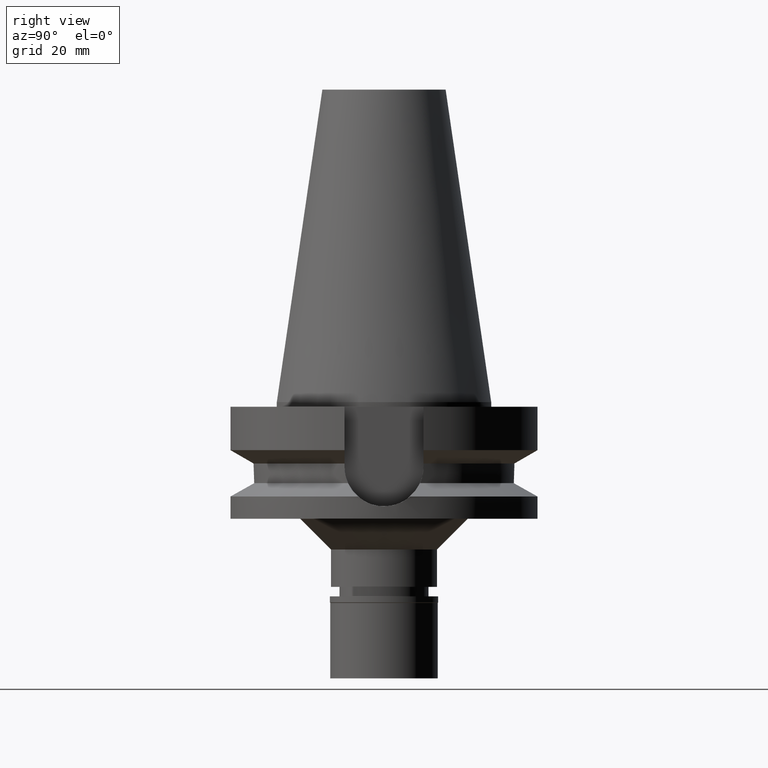
[diagram: clean part render]
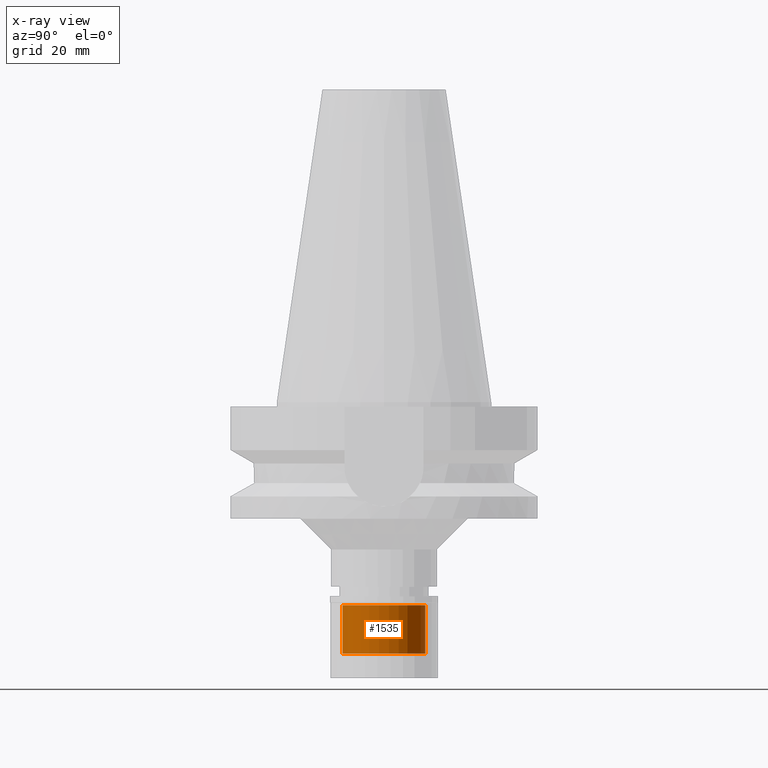
[diagram: x-ray — body ghosted, one internal face saturated and labeled with its STEP entity id]
A machine part, right view, then the same camera in x-ray: the body is ghosted and one INTERNAL B-rep face — a face not visible from any outside direction — is saturated and labeled: STEP entity #1535.
In plain terms, the highlighted cylindrical surface (partial cylindrical patch) has radius 13.5 mm, axis along (0, 0, -1).
Its self-contained STEP definition (entity closure, byte-faithful):
#3 = EDGE_LOOP ( 'NONE', ( #659, #1892, #1833, #2000 ) ) ;
#10 = DIRECTION ( 'NONE',  ( 0.0000000000000000000, 1.000000000000000000, 0.0000000000000000000 ) ) ;
#35 = CARTESIAN_POINT ( 'NONE',  ( 0.0000000000000000000, 0.0000000000000000000, 0.0000000000000000000 ) ) ;
#115 = VECTOR ( 'NONE', #219, 1000.000000000000000 ) ;
#215 = VERTEX_POINT ( 'NONE', #1437 ) ;
#219 = DIRECTION ( 'NONE',  ( 0.0000000000000000000, 0.0000000000000000000, 1.000000000000000000 ) ) ;
#277 = EDGE_CURVE ( 'NONE', #348, #1682, #1420, .T. ) ;
#284 = CIRCLE ( 'NONE', #2273, 13.50000000000000000 ) ;
#348 = VERTEX_POINT ( 'NONE', #2879 ) ;
#352 = CARTESIAN_POINT ( 'NONE',  ( 0.0000000000000000000, -13.50000000000000000, -2.899999999999999911 ) ) ;
#477 = DIRECTION ( 'NONE',  ( 0.0000000000000000000, 0.0000000000000000000, -1.000000000000000000 ) ) ;
#536 = DIRECTION ( 'NONE',  ( 0.0000000000000000000, 0.0000000000000000000, 1.000000000000000000 ) ) ;
#659 = ORIENTED_EDGE ( 'NONE', *, *, #1206, .T. ) ;
#712 = FACE_OUTER_BOUND ( 'NONE', #3, .T. ) ;
#724 = EDGE_CURVE ( 'NONE', #750, #215, #1502, .T. ) ;
#750 = VERTEX_POINT ( 'NONE', #2477 ) ;
#1100 = CARTESIAN_POINT ( 'NONE',  ( 0.0000000000000000000, 0.0000000000000000000, -2.899999999999999911 ) ) ;
#1189 = CARTESIAN_POINT ( 'NONE',  ( 0.0000000000000000000, 0.0000000000000000000, -18.70000000000000284 ) ) ;
#1206 = EDGE_CURVE ( 'NONE', #750, #348, #1791, .T. ) ;
#1235 = DIRECTION ( 'NONE',  ( 0.0000000000000000000, 0.0000000000000000000, -1.000000000000000000 ) ) ;
#1374 = DIRECTION ( 'NONE',  ( 0.0000000000000000000, 0.0000000000000000000, 1.000000000000000000 ) ) ;
#1384 = AXIS2_PLACEMENT_3D ( 'NONE', #1189, #1235, #10 ) ;
#1420 = LINE ( 'NONE', #1699, #115 ) ;
#1423 = DIRECTION ( 'NONE',  ( 0.0000000000000000000, -1.000000000000000000, 0.0000000000000000000 ) ) ;
#1433 = AXIS2_PLACEMENT_3D ( 'NONE', #35, #477, #1423 ) ;
#1437 = CARTESIAN_POINT ( 'NONE',  ( 0.0000000000000000000, 13.50000000000000000, -2.899999999999999911 ) ) ;
#1502 = LINE ( 'NONE', #2688, #2497 ) ;
#1535 = ADVANCED_FACE ( 'NONE', ( #712 ), #2632, .F. ) ;
#1682 = VERTEX_POINT ( 'NONE', #352 ) ;
#1699 = CARTESIAN_POINT ( 'NONE',  ( 0.0000000000000000000, -13.50000000000000000, -18.70000000000000284 ) ) ;
#1791 = CIRCLE ( 'NONE', #1384, 13.50000000000000000 ) ;
#1833 = ORIENTED_EDGE ( 'NONE', *, *, #2368, .T. ) ;
#1892 = ORIENTED_EDGE ( 'NONE', *, *, #277, .T. ) ;
#2000 = ORIENTED_EDGE ( 'NONE', *, *, #724, .F. ) ;
#2273 = AXIS2_PLACEMENT_3D ( 'NONE', #1100, #1374, #2562 ) ;
#2368 = EDGE_CURVE ( 'NONE', #1682, #215, #284, .T. ) ;
#2477 = CARTESIAN_POINT ( 'NONE',  ( 0.0000000000000000000, 13.50000000000000000, -18.70000000000000284 ) ) ;
#2497 = VECTOR ( 'NONE', #536, 1000.000000000000000 ) ;
#2562 = DIRECTION ( 'NONE',  ( 0.0000000000000000000, -1.000000000000000000, 0.0000000000000000000 ) ) ;
#2632 = CYLINDRICAL_SURFACE ( 'NONE', #1433, 13.50000000000000000 ) ;
#2688 = CARTESIAN_POINT ( 'NONE',  ( 0.0000000000000000000, 13.50000000000000000, -18.70000000000000284 ) ) ;
#2879 = CARTESIAN_POINT ( 'NONE',  ( 0.0000000000000000000, -13.50000000000000000, -18.70000000000000284 ) ) ;